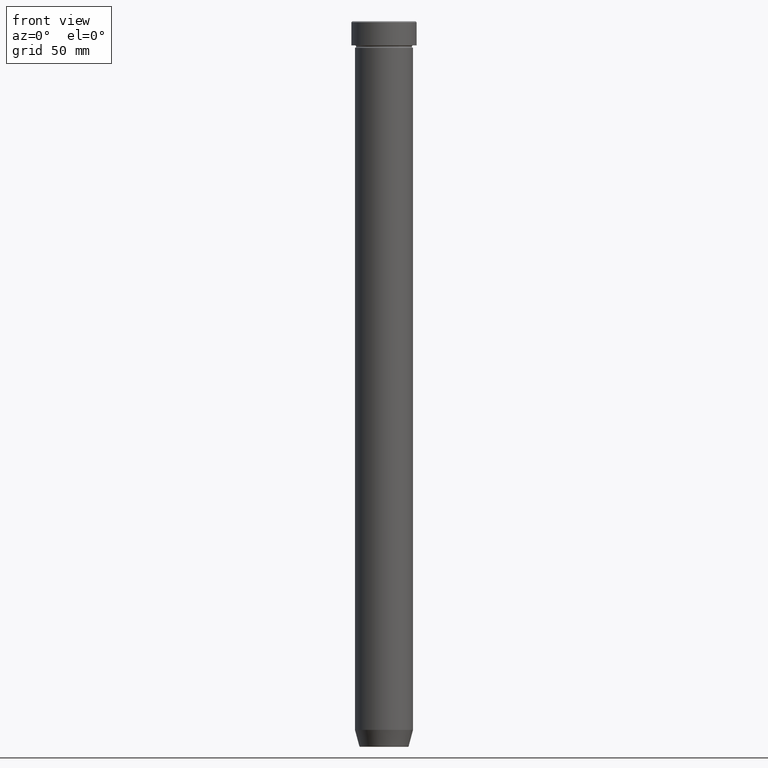
[diagram: clean part render]
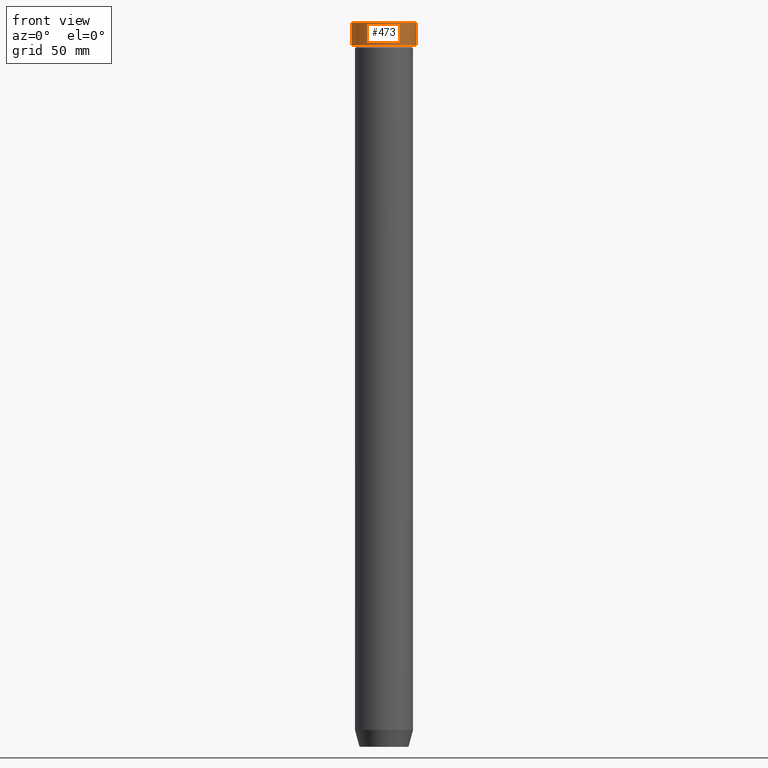
[diagram: same view with one face highlighted and labeled with its STEP entity id]
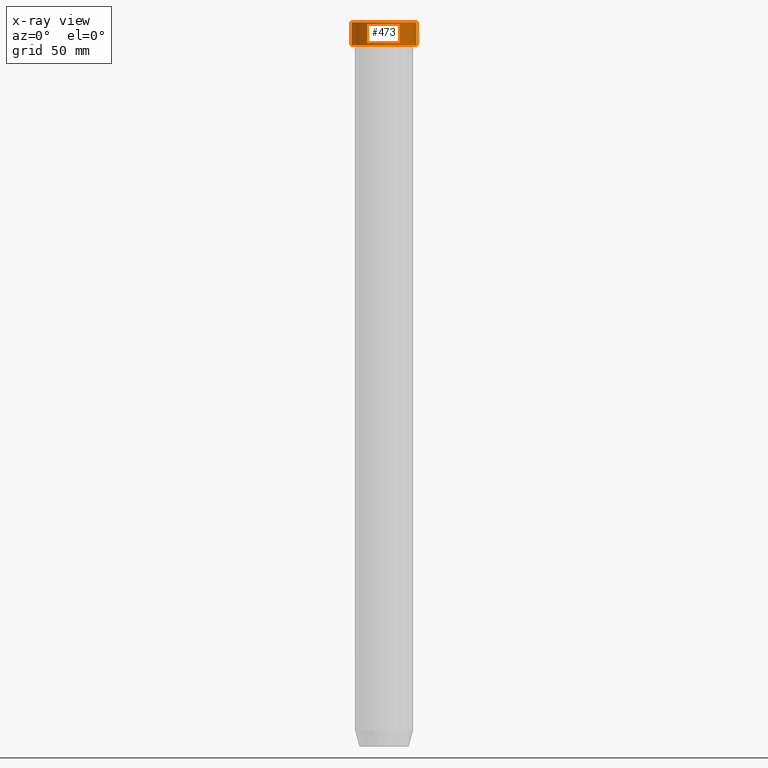
[diagram: x-ray of the same camera — body ghosted, the highlighted face saturated]
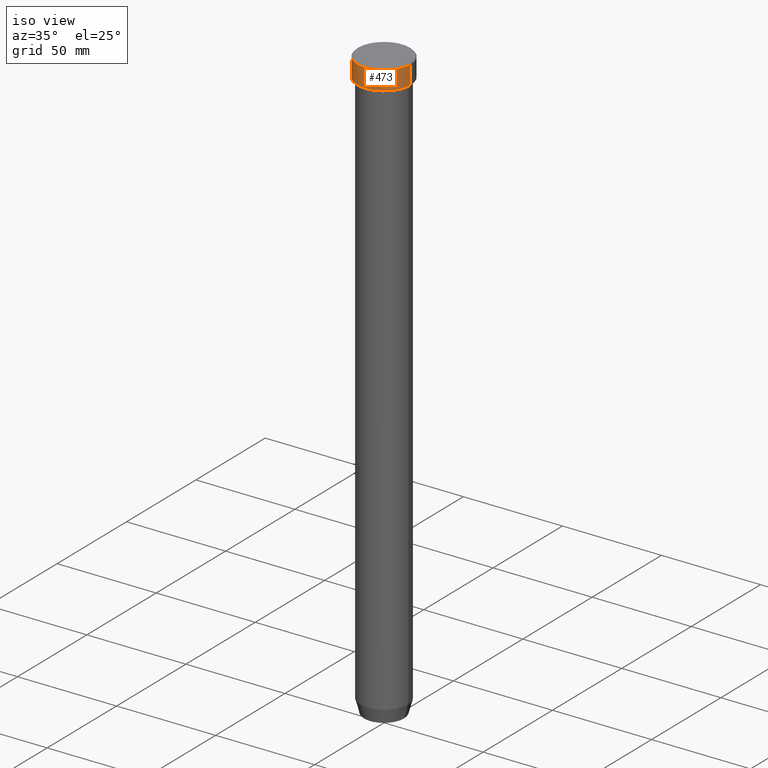
[diagram: same view with one face highlighted and labeled with its STEP entity id]
A machine part, front view. The second image highlights one B-rep face of the part: STEP entity #473.
The next image is the same camera in x-ray: the body ghosted, the highlighted face saturated — about 0% of this face is hidden behind the body in this view.
A second angle (iso view) of the same face is appended — the face is thin or edge-on in the first view.
In plain terms, the highlighted cylindrical surface (edge-blend (fillet) strip) has radius 13.5 mm, axis along (-0, -0, 1).
Its self-contained STEP definition (entity closure, byte-faithful):
#1 = CARTESIAN_POINT ( 'NONE',  ( 0.000000000000000000, 0.000000000000000000, 0.000000000000000000 ) ) ;
#24 = CARTESIAN_POINT ( 'NONE',  ( 0.000000000000000000, 0.000000000000000000, -0.5000000000000091038 ) ) ;
#42 = CYLINDRICAL_SURFACE ( 'NONE', #599, 13.50000000000000000 ) ;
#79 = ORIENTED_EDGE ( 'NONE', *, *, #206, .T. ) ;
#82 = DIRECTION ( 'NONE',  ( -0.000000000000000000, -0.000000000000000000, 1.000000000000000000 ) ) ;
#109 = VECTOR ( 'NONE', #82, 1000.000000000000000 ) ;
#162 = CARTESIAN_POINT ( 'NONE',  ( 0.000000000000000000, 0.000000000000000000, -10.00000000000000000 ) ) ;
#175 = ORIENTED_EDGE ( 'NONE', *, *, #307, .T. ) ;
#180 = EDGE_LOOP ( 'NONE', ( #213, #79, #273, #175 ) ) ;
#205 = DIRECTION ( 'NONE',  ( -0.000000000000000000, -0.000000000000000000, 1.000000000000000000 ) ) ;
#206 = EDGE_CURVE ( 'NONE', #223, #427, #392, .T. ) ;
#213 = ORIENTED_EDGE ( 'NONE', *, *, #346, .F. ) ;
#222 = DIRECTION ( 'NONE',  ( 0.000000000000000000, 0.000000000000000000, -1.000000000000000000 ) ) ;
#223 = VERTEX_POINT ( 'NONE', #442 ) ;
#235 = DIRECTION ( 'NONE',  ( 1.000000000000000000, 0.000000000000000000, 0.000000000000000000 ) ) ;
#267 = LINE ( 'NONE', #358, #341 ) ;
#273 = ORIENTED_EDGE ( 'NONE', *, *, #411, .T. ) ;
#275 = CARTESIAN_POINT ( 'NONE',  ( -13.50000000000000000, 1.653273178848926867E-15, -0.5000000000000091038 ) ) ;
#307 = EDGE_CURVE ( 'NONE', #374, #324, #329, .T. ) ;
#318 = AXIS2_PLACEMENT_3D ( 'NONE', #24, #222, #367 ) ;
#324 = VERTEX_POINT ( 'NONE', #275 ) ;
#329 = CIRCLE ( 'NONE', #318, 13.50000000000000000 ) ;
#341 = VECTOR ( 'NONE', #534, 1000.000000000000000 ) ;
#346 = EDGE_CURVE ( 'NONE', #223, #324, #267, .T. ) ;
#355 = LINE ( 'NONE', #584, #109 ) ;
#358 = CARTESIAN_POINT ( 'NONE',  ( -13.50000000000000000, 1.653273178848926867E-15, 0.000000000000000000 ) ) ;
#367 = DIRECTION ( 'NONE',  ( 1.000000000000000000, 0.000000000000000000, 0.000000000000000000 ) ) ;
#374 = VERTEX_POINT ( 'NONE', #453 ) ;
#392 = CIRCLE ( 'NONE', #549, 13.50000000000000000 ) ;
#411 = EDGE_CURVE ( 'NONE', #427, #374, #355, .T. ) ;
#427 = VERTEX_POINT ( 'NONE', #540 ) ;
#442 = CARTESIAN_POINT ( 'NONE',  ( -13.50000000000000000, 1.653273178848926867E-15, -10.00000000000000000 ) ) ;
#453 = CARTESIAN_POINT ( 'NONE',  ( 13.50000000000000000, 0.000000000000000000, -0.5000000000000091038 ) ) ;
#459 = FACE_OUTER_BOUND ( 'NONE', #180, .T. ) ;
#473 = ADVANCED_FACE ( 'NONE', ( #459 ), #42, .T. ) ;
#483 = DIRECTION ( 'NONE',  ( 1.000000000000000000, 0.000000000000000000, 0.000000000000000000 ) ) ;
#510 = DIRECTION ( 'NONE',  ( -0.000000000000000000, -0.000000000000000000, 1.000000000000000000 ) ) ;
#534 = DIRECTION ( 'NONE',  ( -0.000000000000000000, -0.000000000000000000, 1.000000000000000000 ) ) ;
#540 = CARTESIAN_POINT ( 'NONE',  ( 13.50000000000000000, 0.000000000000000000, -10.00000000000000000 ) ) ;
#549 = AXIS2_PLACEMENT_3D ( 'NONE', #162, #205, #483 ) ;
#584 = CARTESIAN_POINT ( 'NONE',  ( 13.50000000000000000, 0.000000000000000000, 0.000000000000000000 ) ) ;
#599 = AXIS2_PLACEMENT_3D ( 'NONE', #1, #510, #235 ) ;